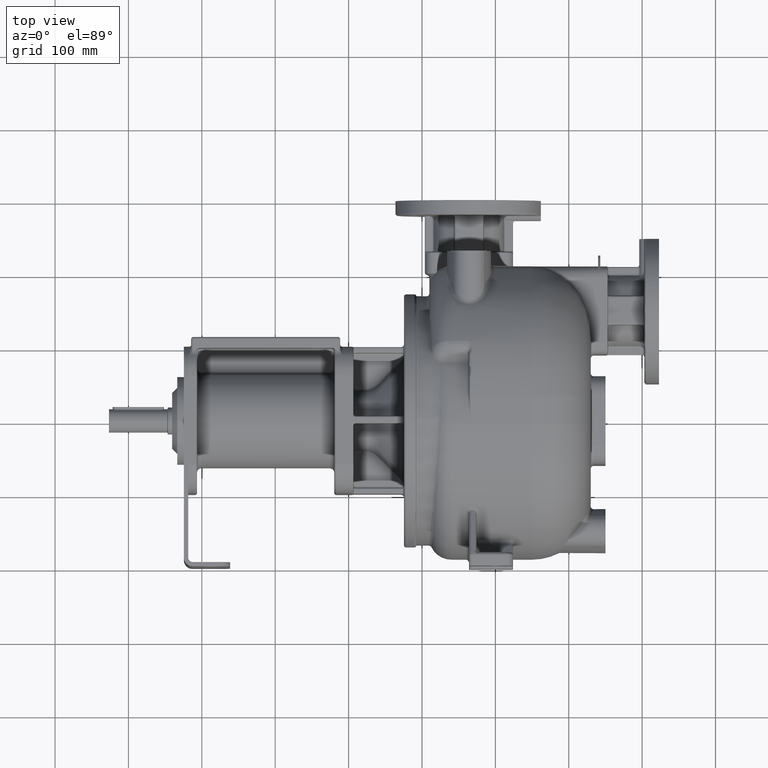
[diagram: clean part render]
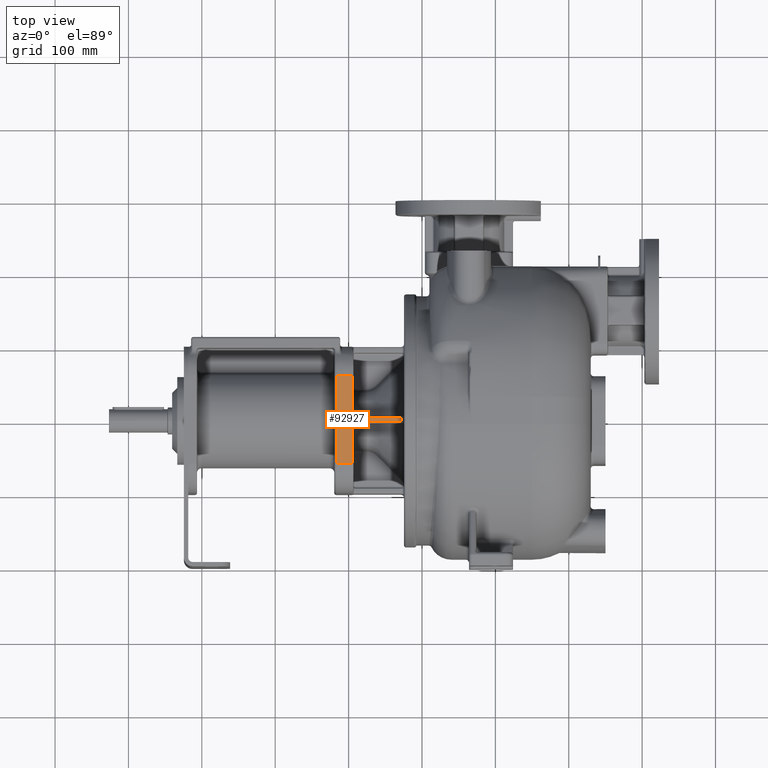
[diagram: same view with one face highlighted and labeled with its STEP entity id]
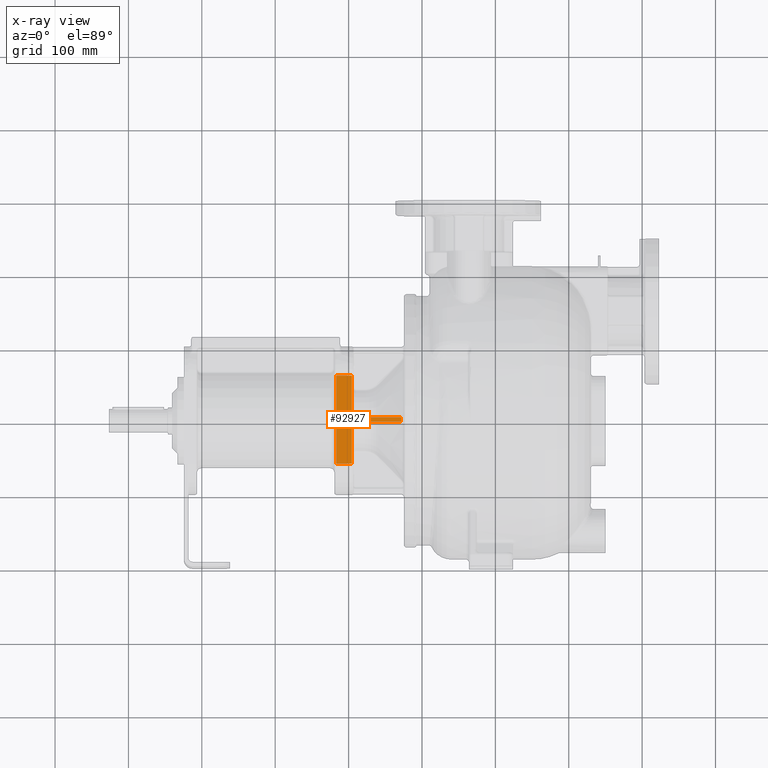
[diagram: x-ray of the same camera — body ghosted, the highlighted face saturated]
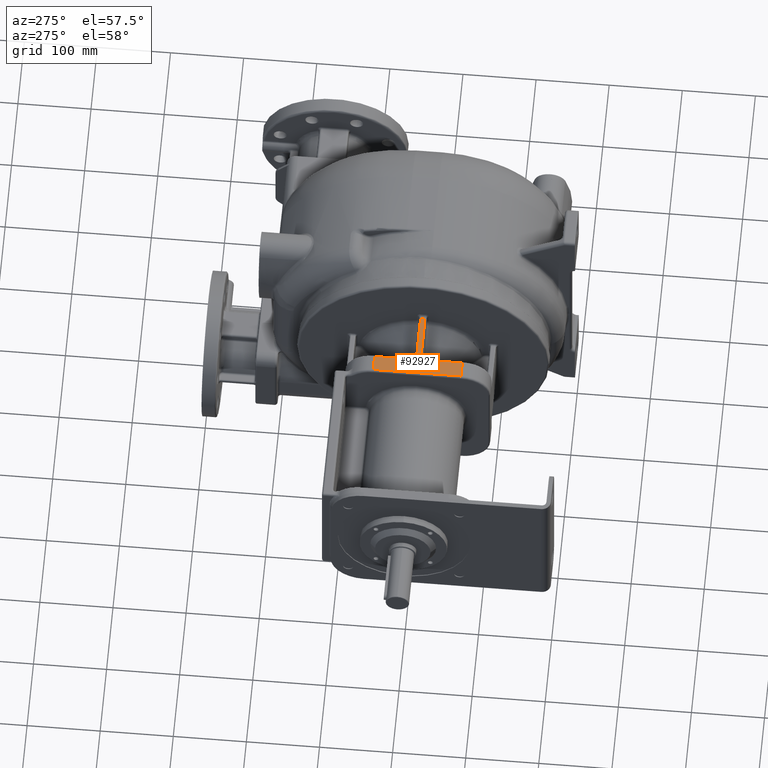
[diagram: same view with one face highlighted and labeled with its STEP entity id]
A machine part, top view. The second image highlights one B-rep face of the part: STEP entity #92927.
The next image is the same camera in x-ray: the body ghosted, the highlighted face saturated — about 0% of this face is hidden behind the body in this view.
A second angle (auxiliary view) of the same face is appended — the face is thin or edge-on in the first view.
In plain terms, the highlighted planar face has unit normal (0, 0, 1).
Its self-contained STEP definition (entity closure, byte-faithful):
#30476=DIRECTION('',(0.E0,1.E0,0.E0));
#30477=VECTOR('',#30476,1.2E2);
#30478=CARTESIAN_POINT('',(-2.165E2,1.4E2,1.E2));
#30479=LINE('',#30478,#30477);
#30480=DIRECTION('',(1.E0,-8.120488408687E-14,0.E0));
#30481=VECTOR('',#30480,2.1E1);
#30482=CARTESIAN_POINT('',(-2.165E2,2.6E2,1.E2));
#30483=LINE('',#30482,#30481);
#30484=DIRECTION('',(-2.071505360410E-13,1.E0,0.E0));
#30485=VECTOR('',#30484,5.199999999995E1);
#30486=CARTESIAN_POINT('',(-1.955E2,2.08E2,1.E2));
#30487=LINE('',#30486,#30485);
#30488=CARTESIAN_POINT('',(-1.905E2,2.08E2,1.E2));
#30489=DIRECTION('',(0.E0,0.E0,-1.E0));
#30490=DIRECTION('',(0.E0,-1.E0,0.E0));
#30491=AXIS2_PLACEMENT_3D('',#30488,#30489,#30490);
#30493=DIRECTION('',(-1.E0,2.443350181678E-13,2.588896838842E-11));
#30494=VECTOR('',#30493,6.2E1);
#30495=CARTESIAN_POINT('',(-1.285E2,2.03E2,9.999999999839E1));
#30496=LINE('',#30495,#30494);
#30497=DIRECTION('',(0.E0,1.E0,1.317227808310E-10));
#30498=VECTOR('',#30497,6.E0);
#30499=CARTESIAN_POINT('',(-1.285E2,1.97E2,9.999999999760E1));
#30500=LINE('',#30499,#30498);
#30501=DIRECTION('',(-1.E0,-1.407333031474E-13,3.863656348265E-11));
#30502=VECTOR('',#30501,6.199999999996E1);
#30503=CARTESIAN_POINT('',(-1.285E2,1.97E2,9.999999999760E1));
#30504=LINE('',#30503,#30502);
#30505=CARTESIAN_POINT('',(-1.905E2,1.92E2,1.E2));
#30506=DIRECTION('',(0.E0,0.E0,1.E0));
#30507=DIRECTION('',(0.E0,1.E0,0.E0));
#30508=AXIS2_PLACEMENT_3D('',#30505,#30506,#30507);
#30510=DIRECTION('',(-1.918465386554E-13,-1.E0,0.E0));
#30511=VECTOR('',#30510,5.199999999996E1);
#30512=CARTESIAN_POINT('',(-1.955E2,1.92E2,1.E2));
#30513=LINE('',#30512,#30511);
#30519=DIRECTION('',(1.E0,1.326346440086E-13,0.E0));
#30520=VECTOR('',#30519,2.1E1);
#30521=CARTESIAN_POINT('',(-2.165E2,1.4E2,1.E2));
#30522=LINE('',#30521,#30520);
#47981=CARTESIAN_POINT('',(-1.955E2,2.6E2,1.E2));
#47982=VERTEX_POINT('',#47981);
#47985=CARTESIAN_POINT('',(-1.955E2,2.08E2,1.E2));
#47986=VERTEX_POINT('',#47985);
#47989=CARTESIAN_POINT('',(-1.905E2,2.03E2,1.E2));
#47990=VERTEX_POINT('',#47989);
#47993=CARTESIAN_POINT('',(-1.285E2,2.03E2,9.999999999839E1));
#47994=VERTEX_POINT('',#47993);
#48023=CARTESIAN_POINT('',(-1.955E2,1.4E2,1.E2));
#48024=VERTEX_POINT('',#48023);
#48027=CARTESIAN_POINT('',(-1.955E2,1.92E2,1.E2));
#48028=VERTEX_POINT('',#48027);
#48031=CARTESIAN_POINT('',(-1.905E2,1.97E2,1.E2));
#48032=VERTEX_POINT('',#48031);
#48033=CARTESIAN_POINT('',(-1.285E2,1.97E2,9.999999999760E1));
#48034=VERTEX_POINT('',#48033);
#48127=CARTESIAN_POINT('',(-2.165E2,1.4E2,1.E2));
#48129=VERTEX_POINT('',#48127);
#48132=CARTESIAN_POINT('',(-2.165E2,2.6E2,1.E2));
#48133=VERTEX_POINT('',#48132);
#92903=CARTESIAN_POINT('',(-1.935E2,1.4E2,1.E2));
#92904=DIRECTION('',(0.E0,0.E0,1.E0));
#92905=DIRECTION('',(0.E0,1.E0,0.E0));
#92906=AXIS2_PLACEMENT_3D('',#92903,#92904,#92905);
#92907=PLANE('',#92906);
#92909=ORIENTED_EDGE('',*,*,#92908,.F.);
#92911=ORIENTED_EDGE('',*,*,#92910,.T.);
#92912=ORIENTED_EDGE('',*,*,#92889,.T.);
#92914=ORIENTED_EDGE('',*,*,#92913,.F.);
#92916=ORIENTED_EDGE('',*,*,#92915,.F.);
#92917=ORIENTED_EDGE('',*,*,#91025,.F.);
#92918=ORIENTED_EDGE('',*,*,#91235,.F.);
#92920=ORIENTED_EDGE('',*,*,#92919,.T.);
#92922=ORIENTED_EDGE('',*,*,#92921,.T.);
#92924=ORIENTED_EDGE('',*,*,#92923,.T.);
#92925=EDGE_LOOP('',(#92909,#92911,#92912,#92914,#92916,#92917,#92918,#92920,
#92922,#92924));
#92926=FACE_OUTER_BOUND('',#92925,.F.);
#92927=ADVANCED_FACE('',(#92926),#92907,.T.);
#30492=CIRCLE('',#30491,5.E0);
#30509=CIRCLE('',#30508,5.E0);
#91025=EDGE_CURVE('',#47994,#47990,#30496,.T.);
#91235=EDGE_CURVE('',#48034,#47994,#30500,.T.);
#92889=EDGE_CURVE('',#48133,#47982,#30483,.T.);
#92908=EDGE_CURVE('',#48129,#48024,#30522,.T.);
#92910=EDGE_CURVE('',#48129,#48133,#30479,.T.);
#92913=EDGE_CURVE('',#47986,#47982,#30487,.T.);
#92915=EDGE_CURVE('',#47990,#47986,#30492,.T.);
#92919=EDGE_CURVE('',#48034,#48032,#30504,.T.);
#92921=EDGE_CURVE('',#48032,#48028,#30509,.T.);
#92923=EDGE_CURVE('',#48028,#48024,#30513,.T.);